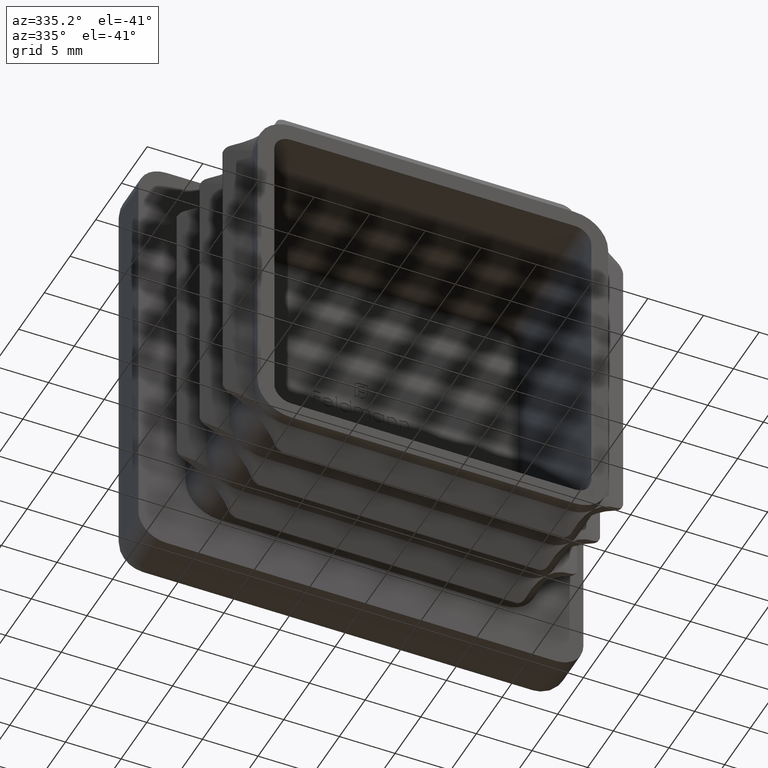
[diagram: clean part render]
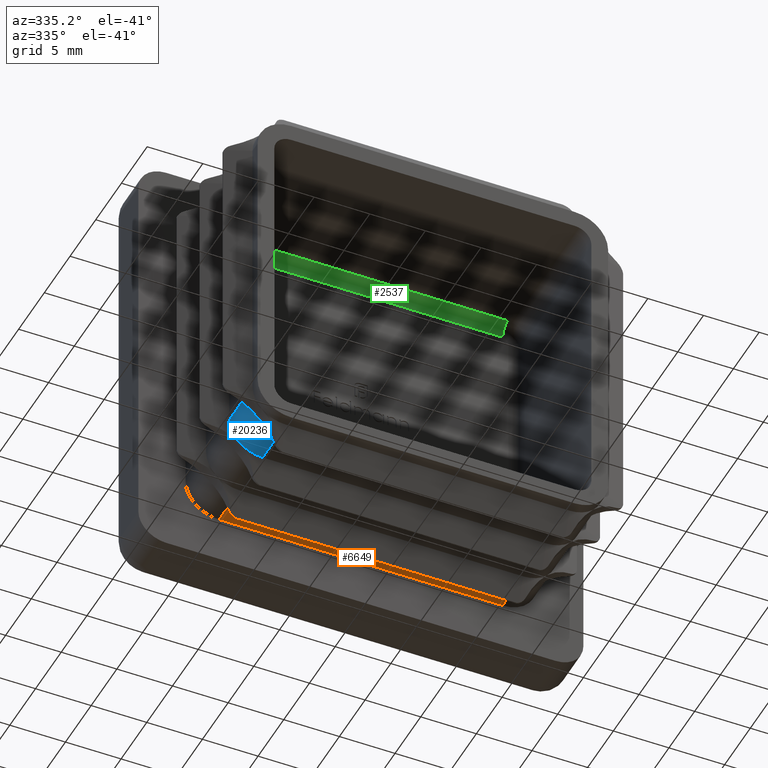
[diagram: same view with three faces highlighted in distinct colors, each labeled with its STEP entity id]
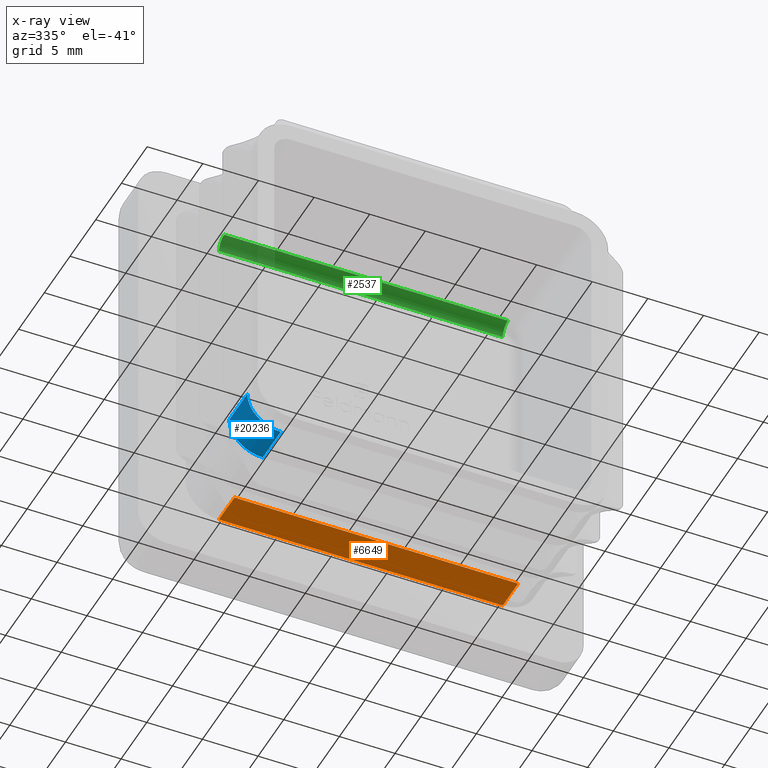
[diagram: x-ray of the same camera — body ghosted, the three highlighted faces saturated]
A machine part, auxiliary view with three faces highlighted in distinct colors.
The next image is the same camera in x-ray (body ghosted, the three faces saturated) — at least one of them is partly hidden behind the body in this view.
Their STEP definitions:

[orange] entity #6649 — the highlighted planar face has unit normal (-0, 0, 1).
#105 = VERTEX_POINT ( 'NONE', #10587 ) ;
#468 = CARTESIAN_POINT ( 'NONE',  ( -12.75000000000000178, -14.00000000000000000, -15.75000000000000000 ) ) ;
#1746 = EDGE_CURVE ( 'NONE', #105, #13873, #11494, .T. ) ;
#2382 = LINE ( 'NONE', #468, #15125 ) ;
#2712 = ORIENTED_EDGE ( 'NONE', *, *, #1746, .T. ) ;
#3268 = VERTEX_POINT ( 'NONE', #21724 ) ;
#3556 = ORIENTED_EDGE ( 'NONE', *, *, #4609, .T. ) ;
#3757 = EDGE_CURVE ( 'NONE', #5896, #13873, #11437, .T. ) ;
#4609 = EDGE_CURVE ( 'NONE', #3268, #105, #2382, .T. ) ;
#5896 = VERTEX_POINT ( 'NONE', #20176 ) ;
#6200 = CARTESIAN_POINT ( 'NONE',  ( 12.75000000000000178, -14.00000000000000000, -15.75000000000000000 ) ) ;
#6275 = DIRECTION ( 'NONE',  ( 1.000000000000000000, 0.000000000000000000, 0.000000000000000000 ) ) ;
#6649 = ADVANCED_FACE ( 'NONE', ( #12952 ), #20500, .F. ) ;
#7889 = DIRECTION ( 'NONE',  ( -0.000000000000000000, 1.000000000000000000, -0.000000000000000000 ) ) ;
#8890 = CARTESIAN_POINT ( 'NONE',  ( -12.75000000000000178, -14.00000000000000000, -15.75000000000000000 ) ) ;
#9934 = ORIENTED_EDGE ( 'NONE', *, *, #3757, .F. ) ;
#10085 = VECTOR ( 'NONE', #18096, 1000.000000000000000 ) ;
#10386 = VECTOR ( 'NONE', #7889, 1000.000000000000000 ) ;
#10524 = DIRECTION ( 'NONE',  ( -0.000000000000000000, 0.000000000000000000, 1.000000000000000000 ) ) ;
#10587 = CARTESIAN_POINT ( 'NONE',  ( -12.75000000000000178, 0.000000000000000000, -15.75000000000000000 ) ) ;
#11233 = AXIS2_PLACEMENT_3D ( 'NONE', #8890, #10524, #12212 ) ;
#11437 = LINE ( 'NONE', #6200, #10386 ) ;
#11494 = LINE ( 'NONE', #16383, #19451 ) ;
#12212 = DIRECTION ( 'NONE',  ( 1.000000000000000000, 0.000000000000000000, 0.000000000000000000 ) ) ;
#12952 = FACE_OUTER_BOUND ( 'NONE', #16628, .T. ) ;
#13873 = VERTEX_POINT ( 'NONE', #17552 ) ;
#14036 = DIRECTION ( 'NONE',  ( -0.000000000000000000, 1.000000000000000000, -0.000000000000000000 ) ) ;
#14718 = CARTESIAN_POINT ( 'NONE',  ( 12.75000000000000178, -3.000000000000000888, -15.75000000000000000 ) ) ;
#15125 = VECTOR ( 'NONE', #14036, 1000.000000000000000 ) ;
#16067 = EDGE_CURVE ( 'NONE', #5896, #3268, #19082, .T. ) ;
#16383 = CARTESIAN_POINT ( 'NONE',  ( -12.75000000000000178, -0.000000000000000000, -15.75000000000000000 ) ) ;
#16628 = EDGE_LOOP ( 'NONE', ( #19353, #3556, #2712, #9934 ) ) ;
#17552 = CARTESIAN_POINT ( 'NONE',  ( 12.75000000000000178, 0.000000000000000000, -15.75000000000000000 ) ) ;
#18096 = DIRECTION ( 'NONE',  ( -1.000000000000000000, 0.000000000000000000, 0.000000000000000000 ) ) ;
#19082 = LINE ( 'NONE', #14718, #10085 ) ;
#19353 = ORIENTED_EDGE ( 'NONE', *, *, #16067, .T. ) ;
#19451 = VECTOR ( 'NONE', #6275, 1000.000000000000000 ) ;
#20176 = CARTESIAN_POINT ( 'NONE',  ( 12.75000000000000178, -3.000000000000000888, -15.75000000000000000 ) ) ;
#20500 = PLANE ( 'NONE',  #11233 ) ;
#21724 = CARTESIAN_POINT ( 'NONE',  ( -12.75000000000000178, -3.000000000000000888, -15.75000000000000000 ) ) ;

[blue] entity #20236 — the highlighted cylindrical surface (partial cylindrical patch) has radius 3 mm, axis along (-0, 1, -0).
#661 = ORIENTED_EDGE ( 'NONE', *, *, #18152, .T. ) ;
#822 = CARTESIAN_POINT ( 'NONE',  ( -12.75000000000000178, -14.00000000000000000, -12.75000000000000178 ) ) ;
#955 = FACE_OUTER_BOUND ( 'NONE', #19304, .T. ) ;
#1426 = CARTESIAN_POINT ( 'NONE',  ( -14.87132034355967747, -12.00000000000000000, -14.87132034355973964 ) ) ;
#1725 = DIRECTION ( 'NONE',  ( -0.000000000000000000, 1.000000000000000000, -0.000000000000000000 ) ) ;
#2971 = ORIENTED_EDGE ( 'NONE', *, *, #10282, .F. ) ;
#2973 = CARTESIAN_POINT ( 'NONE',  ( -15.75000000000000000, -8.500000000000019540, -12.75000000000000178 ) ) ;
#4177 = DIRECTION ( 'NONE',  ( 0.000000000000000000, 0.000000000000000000, 1.000000000000000000 ) ) ;
#4478 = ORIENTED_EDGE ( 'NONE', *, *, #11677, .F. ) ;
#4516 = ORIENTED_EDGE ( 'NONE', *, *, #21678, .T. ) ;
#4891 = CARTESIAN_POINT ( 'NONE',  ( -12.75000000000000178, -12.00000000000000000, -12.75000000000000178 ) ) ;
#5897 = AXIS2_PLACEMENT_3D ( 'NONE', #822, #14536, #4177 ) ;
#6478 = DIRECTION ( 'NONE',  ( 0.000000000000000000, 0.000000000000000000, -1.000000000000000000 ) ) ;
#6515 = CARTESIAN_POINT ( 'NONE',  ( -12.75000000000000178, -12.00000000000000000, -12.75000000000000178 ) ) ;
#6695 = CARTESIAN_POINT ( 'NONE',  ( -14.87132034355960819, -8.500000000000021316, -14.87132034355967036 ) ) ;
#8195 = DIRECTION ( 'NONE',  ( 0.000000000000000000, 1.000000000000000000, 0.000000000000000000 ) ) ;
#8343 = DIRECTION ( 'NONE',  ( 0.000000000000000000, 0.000000000000000000, -1.000000000000000000 ) ) ;
#8866 = LINE ( 'NONE', #10937, #21587 ) ;
#9400 = ORIENTED_EDGE ( 'NONE', *, *, #11171, .F. ) ;
#9704 = AXIS2_PLACEMENT_3D ( 'NONE', #4891, #9998, #21839 ) ;
#9732 = VERTEX_POINT ( 'NONE', #2973 ) ;
#9998 = DIRECTION ( 'NONE',  ( 0.000000000000000000, 1.000000000000000000, 0.000000000000000000 ) ) ;
#10282 = EDGE_CURVE ( 'NONE', #10290, #12630, #20291, .T. ) ;
#10290 = VERTEX_POINT ( 'NONE', #21395 ) ;
#10409 = EDGE_CURVE ( 'NONE', #18806, #14305, #20016, .T. ) ;
#10937 = CARTESIAN_POINT ( 'NONE',  ( -15.75000000000000000, -14.00000000000000000, -12.75000000000000178 ) ) ;
#11126 = CARTESIAN_POINT ( 'NONE',  ( -15.75000000000000000, -12.00000000000000000, -12.75000000000000178 ) ) ;
#11171 = EDGE_CURVE ( 'NONE', #12630, #9732, #14443, .T. ) ;
#11264 = AXIS2_PLACEMENT_3D ( 'NONE', #11403, #20127, #16500 ) ;
#11301 = CYLINDRICAL_SURFACE ( 'NONE', #5897, 2.999999999999999112 ) ;
#11403 = CARTESIAN_POINT ( 'NONE',  ( -12.75000000000000178, -8.500000000000000000, -12.75000000000000178 ) ) ;
#11677 = EDGE_CURVE ( 'NONE', #15742, #10290, #15203, .T. ) ;
#12477 = ORIENTED_EDGE ( 'NONE', *, *, #10409, .T. ) ;
#12630 = VERTEX_POINT ( 'NONE', #6695 ) ;
#13597 = CARTESIAN_POINT ( 'NONE',  ( -12.75000000000000178, -14.00000000000000000, -15.75000000000000000 ) ) ;
#14305 = VERTEX_POINT ( 'NONE', #11126 ) ;
#14443 = CIRCLE ( 'NONE', #19197, 3.000000000000044409 ) ;
#14521 = CIRCLE ( 'NONE', #18399, 3.000000000000092815 ) ;
#14536 = DIRECTION ( 'NONE',  ( -0.000000000000000000, 1.000000000000000000, -0.000000000000000000 ) ) ;
#15203 = LINE ( 'NONE', #13597, #18102 ) ;
#15742 = VERTEX_POINT ( 'NONE', #16926 ) ;
#15952 = DIRECTION ( 'NONE',  ( -0.000000000000000000, 1.000000000000000000, -0.000000000000000000 ) ) ;
#16433 = DIRECTION ( 'NONE',  ( 0.000000000000000000, 1.000000000000000000, 0.000000000000000000 ) ) ;
#16500 = DIRECTION ( 'NONE',  ( 0.000000000000000000, 0.000000000000000000, -1.000000000000000000 ) ) ;
#16926 = CARTESIAN_POINT ( 'NONE',  ( -12.75000000000000178, -12.00000000000000000, -15.75000000000000000 ) ) ;
#18102 = VECTOR ( 'NONE', #1725, 1000.000000000000000 ) ;
#18152 = EDGE_CURVE ( 'NONE', #15742, #18806, #14521, .T. ) ;
#18399 = AXIS2_PLACEMENT_3D ( 'NONE', #6515, #8195, #8343 ) ;
#18806 = VERTEX_POINT ( 'NONE', #1426 ) ;
#19197 = AXIS2_PLACEMENT_3D ( 'NONE', #19842, #16433, #6478 ) ;
#19304 = EDGE_LOOP ( 'NONE', ( #9400, #2971, #4478, #661, #12477, #4516 ) ) ;
#19842 = CARTESIAN_POINT ( 'NONE',  ( -12.75000000000000178, -8.500000000000000000, -12.75000000000000178 ) ) ;
#20016 = CIRCLE ( 'NONE', #9704, 3.000000000000092815 ) ;
#20127 = DIRECTION ( 'NONE',  ( 0.000000000000000000, 1.000000000000000000, 0.000000000000000000 ) ) ;
#20236 = ADVANCED_FACE ( 'NONE', ( #955 ), #11301, .T. ) ;
#20291 = CIRCLE ( 'NONE', #11264, 3.000000000000044409 ) ;
#21395 = CARTESIAN_POINT ( 'NONE',  ( -12.75000000000000178, -8.500000000000019540, -15.75000000000000000 ) ) ;
#21587 = VECTOR ( 'NONE', #15952, 1000.000000000000000 ) ;
#21678 = EDGE_CURVE ( 'NONE', #14305, #9732, #8866, .T. ) ;
#21839 = DIRECTION ( 'NONE',  ( 0.000000000000000000, 0.000000000000000000, -1.000000000000000000 ) ) ;

[green] entity #2537 — the highlighted cylindrical surface (edge-blend (fillet) strip) has radius 1 mm, axis along (-1, 0, 0).
#11 = ORIENTED_EDGE ( 'NONE', *, *, #5316, .F. ) ;
#284 = DIRECTION ( 'NONE',  ( -1.000000000000000000, 0.000000000000000000, 0.000000000000000000 ) ) ;
#1793 = CARTESIAN_POINT ( 'NONE',  ( -12.75000000000000178, -0.9999999999999991118, 13.25000000000000178 ) ) ;
#1827 = CARTESIAN_POINT ( 'NONE',  ( 12.74999999999999822, 0.000000000000000000, 13.25000000000000178 ) ) ;
#1864 = DIRECTION ( 'NONE',  ( 0.000000000000000000, 0.000000000000000000, 1.000000000000000000 ) ) ;
#1878 = CIRCLE ( 'NONE', #6673, 1.000000000000000888 ) ;
#2537 = ADVANCED_FACE ( 'NONE', ( #3236 ), #11224, .F. ) ;
#3236 = FACE_OUTER_BOUND ( 'NONE', #11292, .T. ) ;
#3418 = DIRECTION ( 'NONE',  ( -1.000000000000000000, 0.000000000000000000, 0.000000000000000000 ) ) ;
#3542 = AXIS2_PLACEMENT_3D ( 'NONE', #1793, #3418, #1864 ) ;
#4185 = EDGE_CURVE ( 'NONE', #11320, #12626, #1878, .T. ) ;
#5301 = CARTESIAN_POINT ( 'NONE',  ( -12.75000000000000178, 0.000000000000000000, 13.25000000000000178 ) ) ;
#5316 = EDGE_CURVE ( 'NONE', #11320, #7496, #12716, .T. ) ;
#5848 = VECTOR ( 'NONE', #10440, 1000.000000000000000 ) ;
#6673 = AXIS2_PLACEMENT_3D ( 'NONE', #18314, #21743, #8212 ) ;
#6834 = CARTESIAN_POINT ( 'NONE',  ( 0.000000000000000000, 0.000000000000000000, 13.25000000000000178 ) ) ;
#7476 = EDGE_CURVE ( 'NONE', #12987, #7496, #16651, .T. ) ;
#7496 = VERTEX_POINT ( 'NONE', #5301 ) ;
#8212 = DIRECTION ( 'NONE',  ( 0.000000000000000000, 0.000000000000000000, -1.000000000000000000 ) ) ;
#9239 = DIRECTION ( 'NONE',  ( 1.000000000000000000, -0.000000000000000000, -0.000000000000000000 ) ) ;
#9766 = ORIENTED_EDGE ( 'NONE', *, *, #4185, .T. ) ;
#10440 = DIRECTION ( 'NONE',  ( -1.000000000000000000, 0.000000000000000000, 0.000000000000000000 ) ) ;
#11224 = CYLINDRICAL_SURFACE ( 'NONE', #14302, 1.000000000000000888 ) ;
#11292 = EDGE_LOOP ( 'NONE', ( #9766, #17606, #17145, #11 ) ) ;
#11320 = VERTEX_POINT ( 'NONE', #1827 ) ;
#12054 = CARTESIAN_POINT ( 'NONE',  ( 0.000000000000000000, -1.000000000000000000, 13.25000000000000178 ) ) ;
#12129 = DIRECTION ( 'NONE',  ( 0.000000000000000000, 0.000000000000000000, 1.000000000000000000 ) ) ;
#12424 = CARTESIAN_POINT ( 'NONE',  ( -12.75000000000000178, -0.9999999999999991118, 14.25000000000000000 ) ) ;
#12626 = VERTEX_POINT ( 'NONE', #21330 ) ;
#12716 = LINE ( 'NONE', #6834, #5848 ) ;
#12987 = VERTEX_POINT ( 'NONE', #17529 ) ;
#13415 = EDGE_CURVE ( 'NONE', #12987, #12626, #18281, .T. ) ;
#14090 = VECTOR ( 'NONE', #9239, 1000.000000000000000 ) ;
#14302 = AXIS2_PLACEMENT_3D ( 'NONE', #12054, #284, #12129 ) ;
#16651 = CIRCLE ( 'NONE', #3542, 1.000000000000000888 ) ;
#17145 = ORIENTED_EDGE ( 'NONE', *, *, #7476, .T. ) ;
#17529 = CARTESIAN_POINT ( 'NONE',  ( -12.75000000000000178, -0.9999999999999991118, 14.25000000000000000 ) ) ;
#17606 = ORIENTED_EDGE ( 'NONE', *, *, #13415, .F. ) ;
#18281 = LINE ( 'NONE', #12424, #14090 ) ;
#18314 = CARTESIAN_POINT ( 'NONE',  ( 12.74999999999999822, -1.000000000000000000, 13.25000000000000178 ) ) ;
#21330 = CARTESIAN_POINT ( 'NONE',  ( 12.74999999999999822, -0.9999999999999991118, 14.25000000000000000 ) ) ;
#21743 = DIRECTION ( 'NONE',  ( 1.000000000000000000, 0.000000000000000000, 0.000000000000000000 ) ) ;